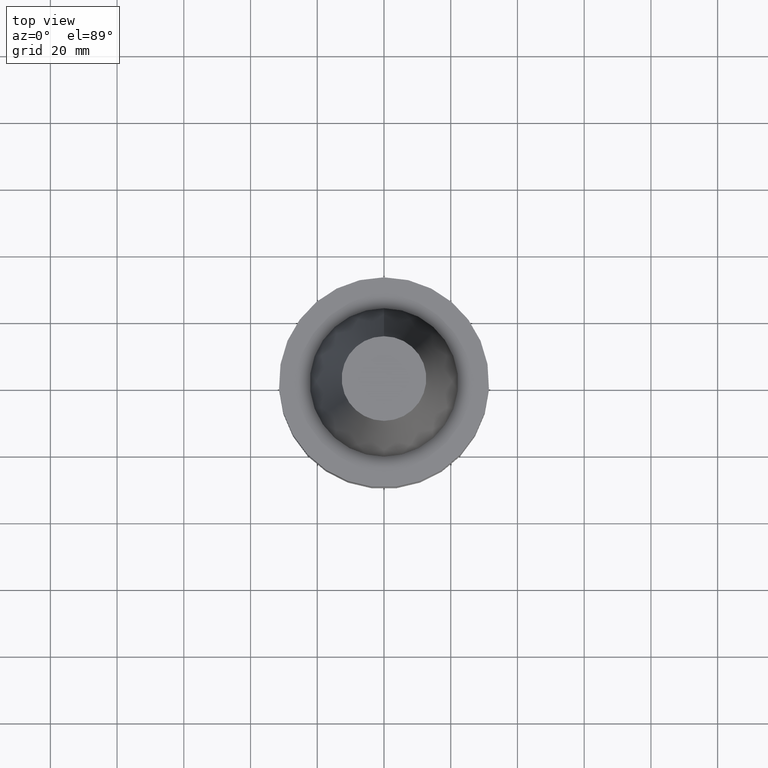
[diagram: clean part render]
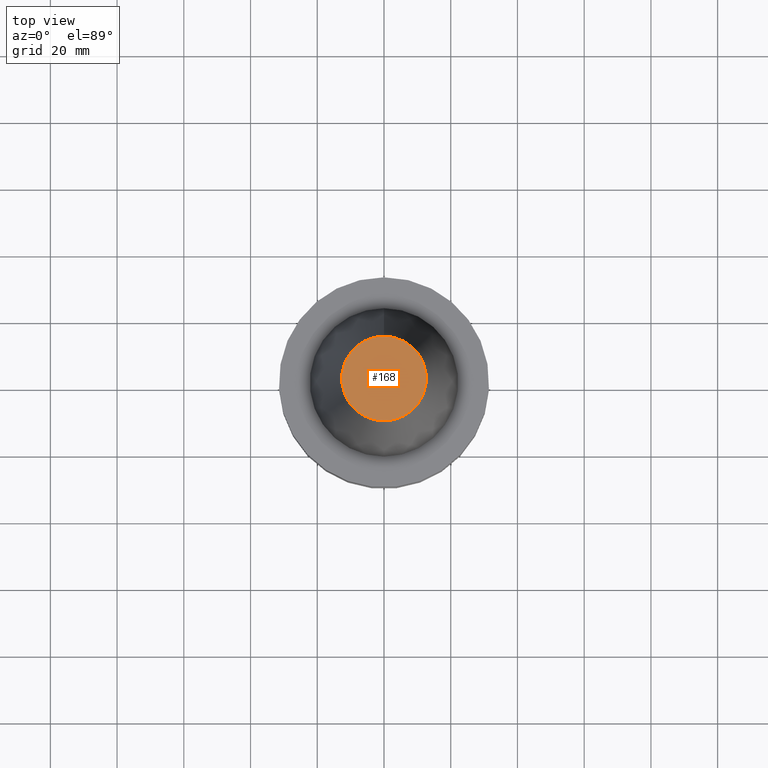
[diagram: same view with one face highlighted and labeled with its STEP entity id]
A machine part, top view. The second image highlights one B-rep face of the part: STEP entity #168.
In plain terms, the highlighted planar face has unit normal (-0, 0, 1).
Its self-contained STEP definition (entity closure, byte-faithful):
#120=EDGE_CURVE('Unnamed[1]',#268,#268,#269,.T.);
#168=ADVANCED_FACE('Unnamed[1]',(#343),#344,.T.);
#268=VERTEX_POINT('',#459);
#269=CIRCLE('',#460,12.6875000000001);
#343=FACE_OUTER_BOUND('',#553,.T.);
#344=PLANE('',#554);
#459=CARTESIAN_POINT('',(-4.00459503321185E-015,12.6875000000002,65.4000000000001));
#460=AXIS2_PLACEMENT_3D('',#652,#653,#654);
#553=EDGE_LOOP('',(#736));
#554=AXIS2_PLACEMENT_3D('',#737,#738,#739);
#652=CARTESIAN_POINT('',(-4.00459503321185E-015,7.71593637596901E-014,65.4000000000001));
#653=DIRECTION('',(6.12323399573677E-017,-8.98149397141931E-018,-1.0));
#654=DIRECTION('',(-4.27719483858603E-033,1.0,-8.98149397141931E-018));
#736=ORIENTED_EDGE('',*,*,#120,.F.);
#737=CARTESIAN_POINT('',(-4.00459503321185E-015,6.34375000000014,65.4000000000001));
#738=DIRECTION('',(-6.12323399573677E-017,9.97602686800683E-016,1.0));
#739=DIRECTION('',(-5.62583941297938E-032,-1.0,9.97602686800683E-016));